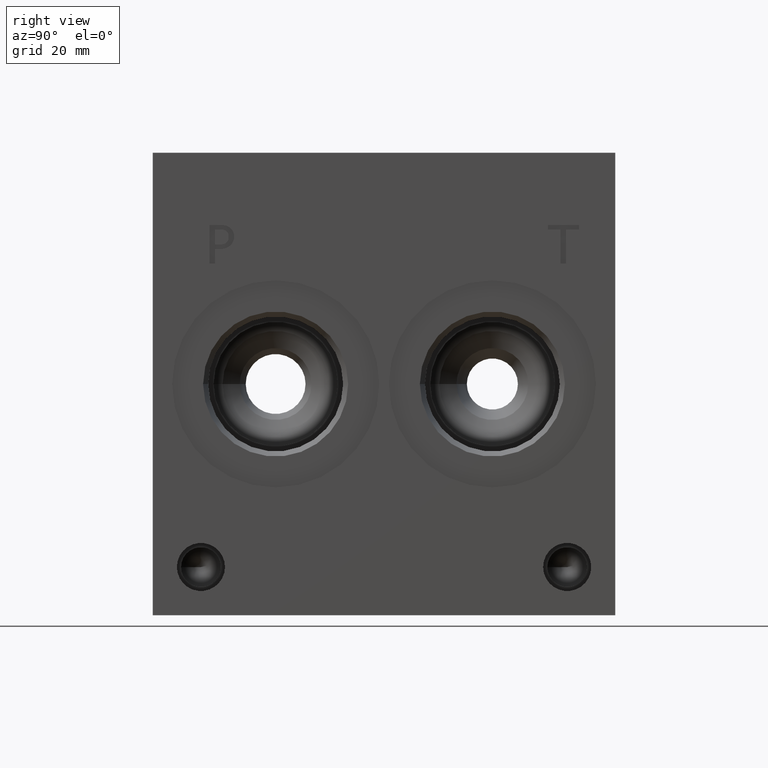
[diagram: clean part render]
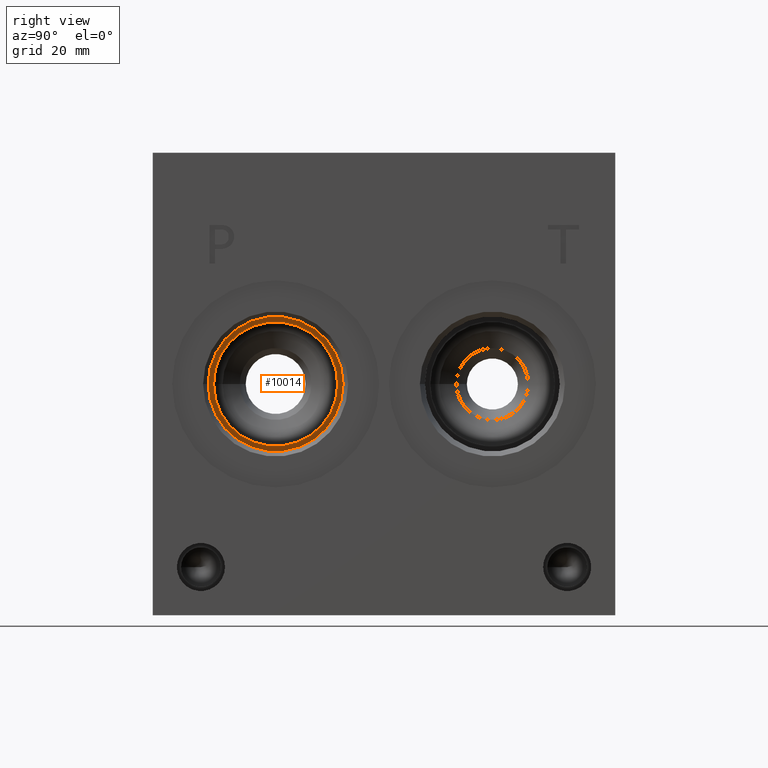
[diagram: same view with one face highlighted and labeled with its STEP entity id]
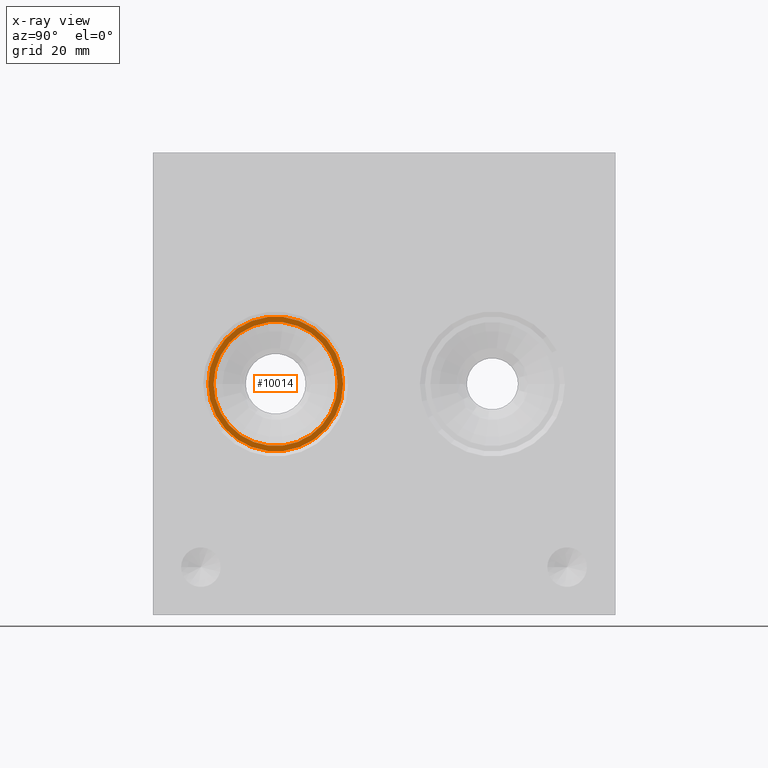
[diagram: x-ray of the same camera — body ghosted, the highlighted face saturated]
A machine part, right view. The second image highlights one B-rep face of the part: STEP entity #10014.
The next image is the same camera in x-ray: the body ghosted, the highlighted face saturated — about 0% of this face is hidden behind the body in this view.
In plain terms, the highlighted planar face has unit normal (1, 0, 0).
Its self-contained STEP definition (entity closure, byte-faithful):
#172=CIRCLE('',#10540,11.1125);
#173=CIRCLE('',#10541,11.1125);
#174=CIRCLE('',#10542,10.2235);
#358=FACE_BOUND('',#1780,.T.);
#1208=FACE_OUTER_BOUND('',#1779,.T.);
#1779=EDGE_LOOP('',(#8555,#8556));
#1780=EDGE_LOOP('',(#8557));
#4617=VERTEX_POINT('',#17017);
#4618=VERTEX_POINT('',#17018);
#4619=VERTEX_POINT('',#17021);
#5965=EDGE_CURVE('',#4617,#4618,#172,.T.);
#5966=EDGE_CURVE('',#4618,#4617,#173,.T.);
#5967=EDGE_CURVE('',#4619,#4619,#174,.T.);
#8555=ORIENTED_EDGE('',*,*,#5965,.T.);
#8556=ORIENTED_EDGE('',*,*,#5966,.T.);
#8557=ORIENTED_EDGE('',*,*,#5967,.F.);
#9156=PLANE('',#10539);
#10014=ADVANCED_FACE('',(#1208,#358),#9156,.T.);
#10539=AXIS2_PLACEMENT_3D('',#17016,#12476,#12477);
#10540=AXIS2_PLACEMENT_3D('',#17019,#12478,#12479);
#10541=AXIS2_PLACEMENT_3D('',#17020,#12480,#12481);
#10542=AXIS2_PLACEMENT_3D('',#17022,#12482,#12483);
#12476=DIRECTION('center_axis',(1.,0.,0.));
#12477=DIRECTION('ref_axis',(0.,1.,0.));
#12478=DIRECTION('center_axis',(1.,0.,0.));
#12479=DIRECTION('ref_axis',(0.,1.,0.));
#12480=DIRECTION('center_axis',(1.,0.,0.));
#12481=DIRECTION('ref_axis',(0.,1.,0.));
#12482=DIRECTION('center_axis',(1.,0.,0.));
#12483=DIRECTION('ref_axis',(0.,1.,0.));
#17016=CARTESIAN_POINT('Origin',(36.5252,20.2438,38.1));
#17017=CARTESIAN_POINT('',(36.5252,31.3563,38.1));
#17018=CARTESIAN_POINT('',(36.5252,9.1313,38.1));
#17019=CARTESIAN_POINT('Origin',(36.5252,20.2438,38.1));
#17020=CARTESIAN_POINT('Origin',(36.5252,20.2438,38.1));
#17021=CARTESIAN_POINT('',(36.5252,10.0203,38.1));
#17022=CARTESIAN_POINT('Origin',(36.5252,20.2438,38.1));